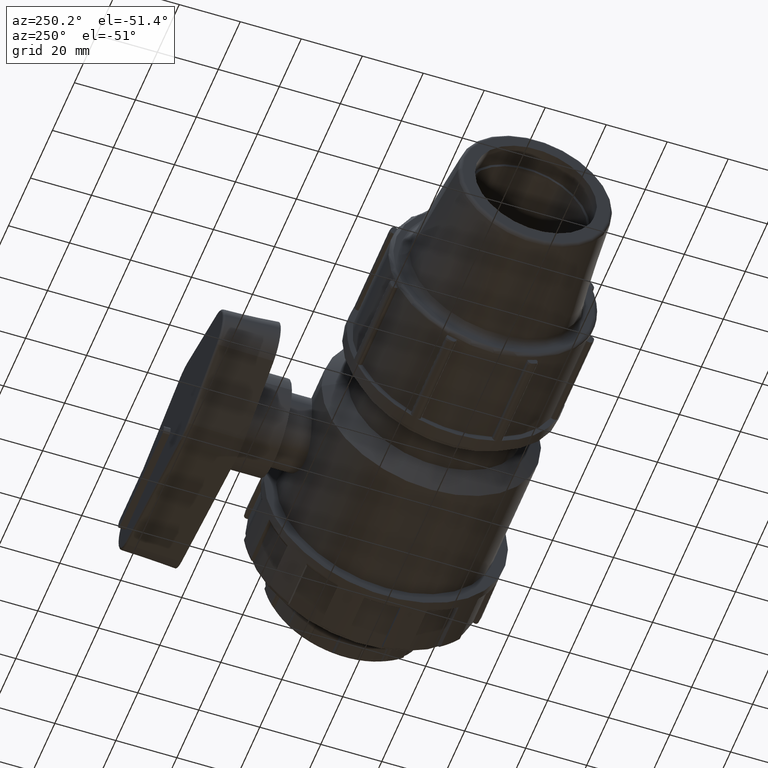
[diagram: clean part render]
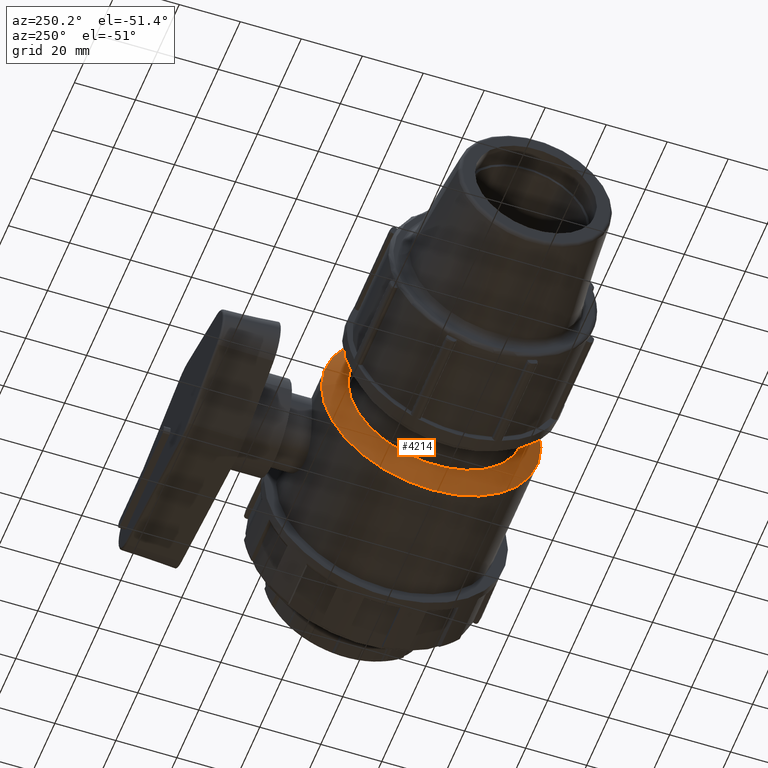
[diagram: same view with one face highlighted and labeled with its STEP entity id]
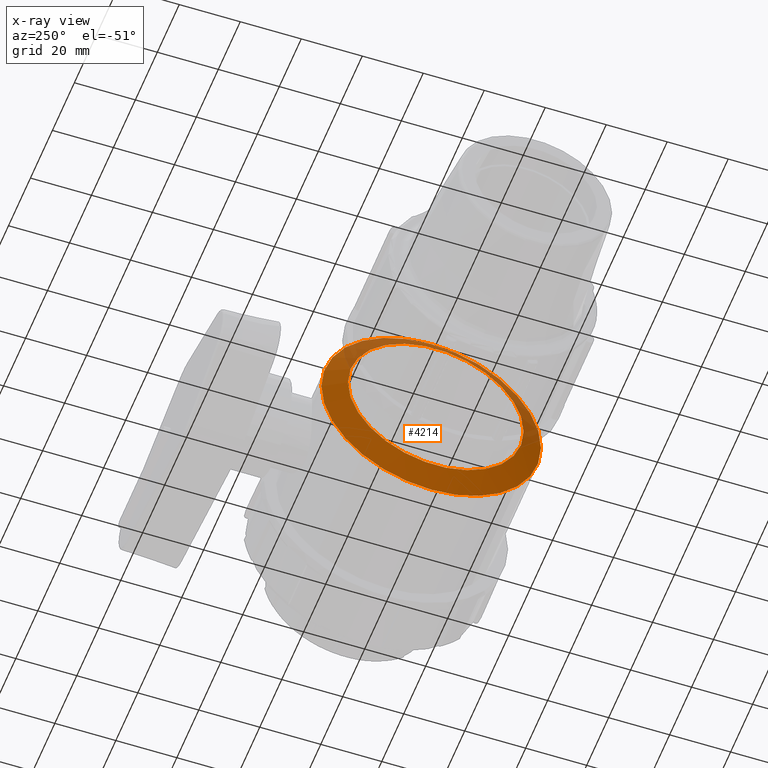
[diagram: x-ray of the same camera — body ghosted, the highlighted face saturated]
A machine part, auxiliary view. The second image highlights one B-rep face of the part: STEP entity #4214.
The next image is the same camera in x-ray: the body ghosted, the highlighted face saturated — about 19% of this face is hidden behind the body in this view.
In plain terms, the highlighted conical surface has half-angle 60 deg.
Its self-contained STEP definition (entity closure, byte-faithful):
#31=CONICAL_SURFACE('',#4706,32.4,60.0000000000001);
#58=FACE_BOUND('',#867,.T.);
#594=FACE_OUTER_BOUND('',#866,.T.);
#866=EDGE_LOOP('',(#3882));
#867=EDGE_LOOP('',(#3883));
#1599=CIRCLE('',#4705,36.);
#1600=CIRCLE('',#4707,28.8);
#2012=VERTEX_POINT('',#8598);
#2013=VERTEX_POINT('',#8601);
#2639=EDGE_CURVE('',#2012,#2012,#1599,.T.);
#2640=EDGE_CURVE('',#2013,#2013,#1600,.T.);
#3882=ORIENTED_EDGE('',*,*,#2640,.F.);
#3883=ORIENTED_EDGE('',*,*,#2639,.T.);
#4214=ADVANCED_FACE('',(#594,#58),#31,.T.);
#4705=AXIS2_PLACEMENT_3D('',#8599,#5912,#5913);
#4706=AXIS2_PLACEMENT_3D('',#8600,#5914,#5915);
#4707=AXIS2_PLACEMENT_3D('',#8602,#5916,#5917);
#5912=DIRECTION('center_axis',(-1.,0.,0.));
#5913=DIRECTION('ref_axis',(0.,0.,1.));
#5914=DIRECTION('center_axis',(1.,0.,0.));
#5915=DIRECTION('ref_axis',(0.,1.,0.));
#5916=DIRECTION('center_axis',(-1.,0.,0.));
#5917=DIRECTION('ref_axis',(0.,0.,1.));
#8598=CARTESIAN_POINT('',(-20.6,36.,0.));
#8599=CARTESIAN_POINT('Origin',(-20.6,0.,0.));
#8600=CARTESIAN_POINT('Origin',(-22.6784609690826,0.,0.));
#8601=CARTESIAN_POINT('',(-24.7569219381653,28.8,0.));
#8602=CARTESIAN_POINT('Origin',(-24.7569219381653,0.,0.));